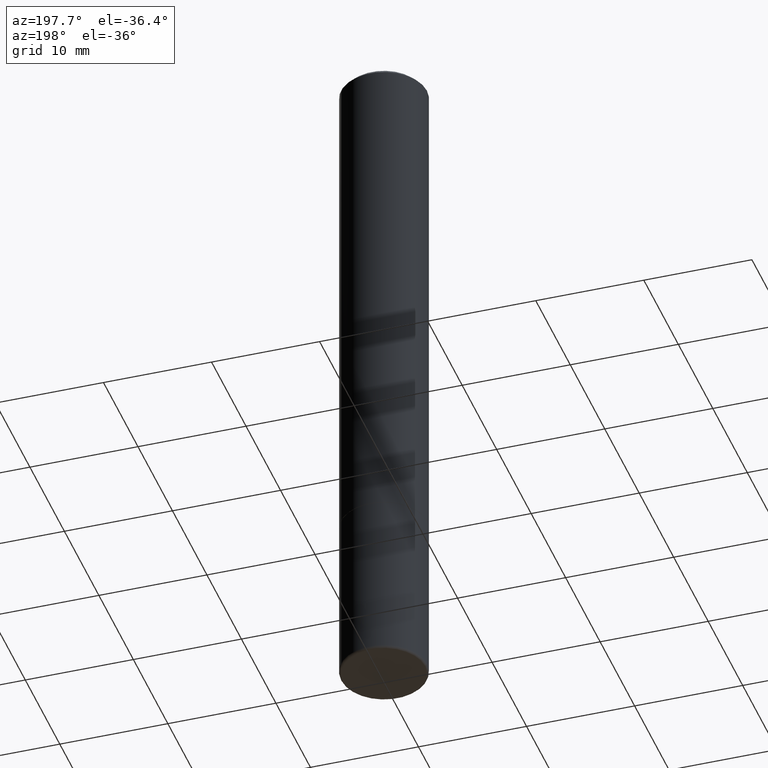
[diagram: clean part render]
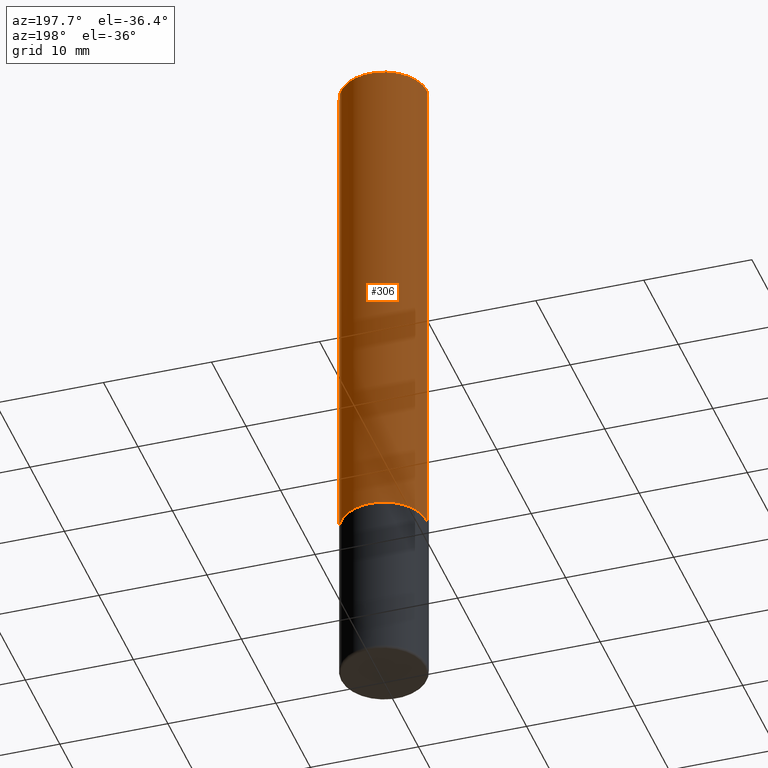
[diagram: same view with one face highlighted and labeled with its STEP entity id]
A machine part, auxiliary view. The second image highlights one B-rep face of the part: STEP entity #306.
In plain terms, the highlighted cylindrical surface (partial cylindrical patch) has radius 3.9688 mm, axis along (-0, 0, 1).
Its self-contained STEP definition (entity closure, byte-faithful):
#10 = VERTEX_POINT ( 'NONE', #342 ) ;
#11 = DIRECTION ( 'NONE',  ( 1.000000000000000000, -6.982962677686266711E-15, 4.876176775795936353E-29 ) ) ;
#30 = CARTESIAN_POINT ( 'NONE',  ( 0.1562500000000001388, -1.091087918388480160E-15, 7.619026212181157383E-30 ) ) ;
#42 = CARTESIAN_POINT ( 'NONE',  ( 4.582808542790945516E-29, -6.543036028992054911E-15, -1.874000000000000110 ) ) ;
#44 = CARTESIAN_POINT ( 'NONE',  ( -0.1562500000000002220, -2.196209803259299803E-15, -1.874000000000000110 ) ) ;
#78 = EDGE_LOOP ( 'NONE', ( #369, #165, #377, #414 ) ) ;
#85 = VERTEX_POINT ( 'NONE', #121 ) ;
#94 = AXIS2_PLACEMENT_3D ( 'NONE', #371, #305, #11 ) ;
#101 = DIRECTION ( 'NONE',  ( -2.445468806185136877E-29, 3.491481338843145188E-15, 1.000000000000000000 ) ) ;
#121 = CARTESIAN_POINT ( 'NONE',  ( 0.1562500000000002220, -7.634123947380535662E-15, -1.874000000000000110 ) ) ;
#159 = AXIS2_PLACEMENT_3D ( 'NONE', #186, #364, #255 ) ;
#160 = EDGE_CURVE ( 'NONE', #10, #193, #418, .T. ) ;
#165 = ORIENTED_EDGE ( 'NONE', *, *, #386, .T. ) ;
#177 = EDGE_CURVE ( 'NONE', #85, #10, #317, .T. ) ;
#178 = DIRECTION ( 'NONE',  ( -2.445468806185136877E-29, 3.491481338843145188E-15, 1.000000000000000000 ) ) ;
#186 = CARTESIAN_POINT ( 'NONE',  ( 4.890937612370281041E-31, -6.982962677686302702E-17, -0.02000000000000003511 ) ) ;
#193 = VERTEX_POINT ( 'NONE', #350 ) ;
#211 = EDGE_CURVE ( 'NONE', #85, #264, #309, .T. ) ;
#232 = AXIS2_PLACEMENT_3D ( 'NONE', #42, #319, #297 ) ;
#255 = DIRECTION ( 'NONE',  ( 1.000000000000000000, -6.982962677686266711E-15, 0.000000000000000000 ) ) ;
#264 = VERTEX_POINT ( 'NONE', #44 ) ;
#272 = CYLINDRICAL_SURFACE ( 'NONE', #94, 0.1562500000000001388 ) ;
#286 = LINE ( 'NONE', #415, #374 ) ;
#297 = DIRECTION ( 'NONE',  ( 1.000000000000000000, -6.982962677686265922E-15, 0.000000000000000000 ) ) ;
#305 = DIRECTION ( 'NONE',  ( -2.445468806185136597E-29, 3.491481338843145583E-15, 1.000000000000000000 ) ) ;
#306 = ADVANCED_FACE ( 'NONE', ( #333 ), #272, .T. ) ;
#309 = CIRCLE ( 'NONE', #232, 0.1562500000000002220 ) ;
#317 = LINE ( 'NONE', #30, #328 ) ;
#319 = DIRECTION ( 'NONE',  ( -2.445468806185136597E-29, 3.491481338843145583E-15, 1.000000000000000000 ) ) ;
#328 = VECTOR ( 'NONE', #101, 39.37007874015748143 ) ;
#333 = FACE_OUTER_BOUND ( 'NONE', #78, .T. ) ;
#342 = CARTESIAN_POINT ( 'NONE',  ( 0.1562500000000000278, -1.141782438928665105E-15, -0.02000000000000003511 ) ) ;
#350 = CARTESIAN_POINT ( 'NONE',  ( -0.1562500000000000278, 1.021258291611616467E-15, -0.02000000000000003511 ) ) ;
#364 = DIRECTION ( 'NONE',  ( -2.445468806185136597E-29, 3.491481338843145583E-15, 1.000000000000000000 ) ) ;
#369 = ORIENTED_EDGE ( 'NONE', *, *, #211, .T. ) ;
#371 = CARTESIAN_POINT ( 'NONE',  ( 0.000000000000000000, 0.000000000000000000, 0.000000000000000000 ) ) ;
#374 = VECTOR ( 'NONE', #178, 39.37007874015748143 ) ;
#377 = ORIENTED_EDGE ( 'NONE', *, *, #160, .F. ) ;
#386 = EDGE_CURVE ( 'NONE', #264, #193, #286, .T. ) ;
#414 = ORIENTED_EDGE ( 'NONE', *, *, #177, .F. ) ;
#415 = CARTESIAN_POINT ( 'NONE',  ( -0.1562500000000001388, 1.110223024625157526E-15, -7.685836078523296765E-30 ) ) ;
#418 = CIRCLE ( 'NONE', #159, 0.1562500000000000278 ) ;